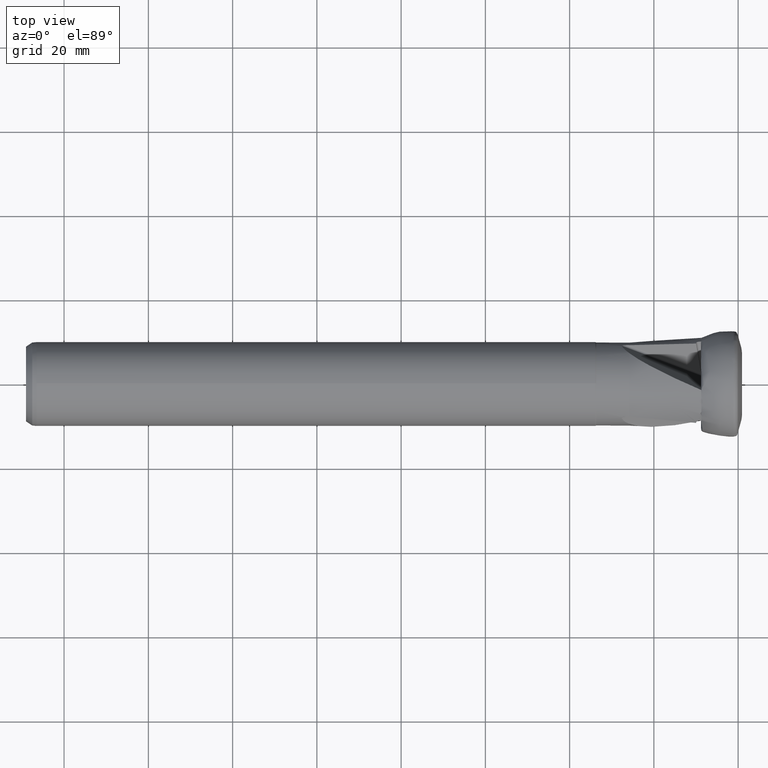
[diagram: clean part render]
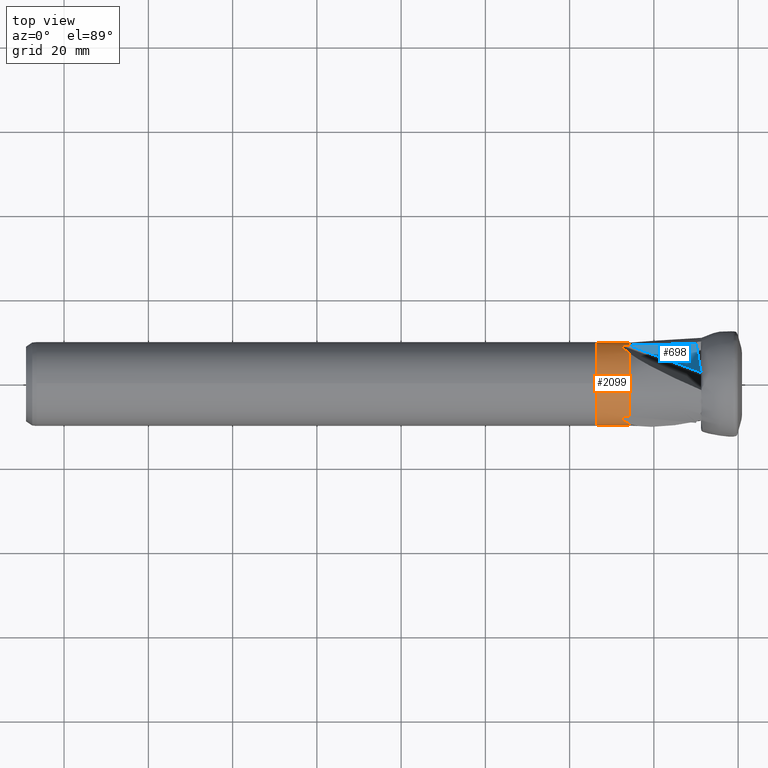
[diagram: same view with the hole feature highlighted: cylindrical wall and planar end face, labeled with their STEP entity ids]
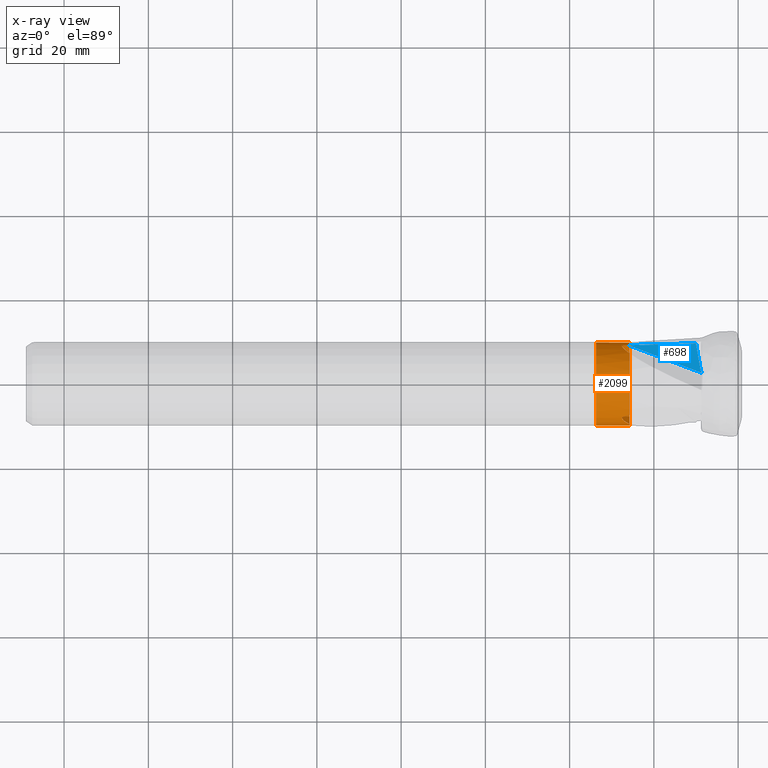
[diagram: x-ray of the same camera — body ghosted, the hole faces saturated]
A machine part, top view. The highlighted faces form one hole feature of diameter 19.8 mm: the cylindrical wall (entity #2099, orange) and its adjacent planar end face (entity #698, blue) — they share a circular edge in the B-rep.
The next image is the same camera in x-ray (body ghosted, the hole faces saturated) — the bore reads through the body.
Wall:
#34 = CARTESIAN_POINT ( 'NONE',  ( -27.61564122826636900, 8.963413834609408300, 4.203238326520708100 ) ) ;
#64 =( BOUNDED_CURVE ( )  B_SPLINE_CURVE ( 3, ( #2452, #2436, #1239, #3362 ),
 .UNSPECIFIED., .F., .T. ) 
 B_SPLINE_CURVE_WITH_KNOTS ( ( 4, 4 ),
 ( 1.702784348002084600, 1.704862663847087200 ),
 .UNSPECIFIED. ) 
 CURVE ( )  GEOMETRIC_REPRESENTATION_ITEM ( )  RATIONAL_B_SPLINE_CURVE ( ( 1.000000000000000000, 0.9999996400503029500, 0.9999996400503029500, 1.000000000000000000 ) ) 
 REPRESENTATION_ITEM ( '' )  );
#74 = CARTESIAN_POINT ( 'NONE',  ( -27.48806169156334900, 9.065543854442115200, 3.978510894549219600 ) ) ;
#142 = VERTEX_POINT ( 'NONE', #2656 ) ;
#159 = CARTESIAN_POINT ( 'NONE',  ( -27.61756287462494400, -0.9148450907827342400, -9.857696703470542900 ) ) ;
#161 = EDGE_LOOP ( 'NONE', ( #2997, #2093, #2735, #1234, #1885, #1019, #482, #1419, #2726, #1057, #1969, #420 ) ) ;
#162 = EDGE_CURVE ( 'NONE', #2925, #3113, #2258, .T. ) ;
#193 = VERTEX_POINT ( 'NONE', #837 ) ;
#250 = CARTESIAN_POINT ( 'NONE',  ( 0.0000000000000000000, 0.0000000000000000000, 0.0000000000000000000 ) ) ;
#287 = CARTESIAN_POINT ( 'NONE',  ( -27.41783301019367900, -8.722487658318975400, 4.799134832800167900 ) ) ;
#291 = CARTESIAN_POINT ( 'NONE',  ( -27.61564122826637700, -0.8415957483774254600, -9.864163248664985100 ) ) ;
#295 = CARTESIAN_POINT ( 'NONE',  ( -26.09164118996199400, 9.158358529980585400, 3.759583625394147300 ) ) ;
#306 = CARTESIAN_POINT ( 'NONE',  ( -27.61564122826638400, -8.121818086232055500, 5.660924922144244100 ) ) ;
#307 = CARTESIAN_POINT ( 'NONE',  ( -27.41783301019367500, 0.2050711477676617800, -9.953463312700556300 ) ) ;
#340 = DIRECTION ( 'NONE',  ( 1.000000000000000000, -0.0000000000000000000, -0.0000000000000000000 ) ) ;
#381 = CARTESIAN_POINT ( 'NONE',  ( -27.22900318429483600, 9.116895860550529900, 3.859536374489353200 ) ) ;
#390 = EDGE_CURVE ( 'NONE', #2407, #193, #1813, .T. ) ;
#413 = CARTESIAN_POINT ( 'NONE',  ( -25.80000000000000100, 0.0000000000000000000, 0.0000000000000000000 ) ) ;
#420 = ORIENTED_EDGE ( 'NONE', *, *, #3121, .F. ) ;
#457 = CARTESIAN_POINT ( 'NONE',  ( -27.56609073157438800, -1.010714957216299400, -9.848305125958194800 ) ) ;
#482 = ORIENTED_EDGE ( 'NONE', *, *, #2866, .F. ) ;
#490 = CARTESIAN_POINT ( 'NONE',  ( -27.61564122826636900, 8.963413834609408300, 4.203238326520708100 ) ) ;
#502 = CARTESIAN_POINT ( 'NONE',  ( -25.80000000000000100, 7.206657879620563800, 6.787789198708425800 ) ) ;
#539 = DIRECTION ( 'NONE',  ( 1.000000000000000000, -0.0000000000000000000, -0.0000000000000000000 ) ) ;
#541 =( BOUNDED_CURVE ( )  B_SPLINE_CURVE ( 3, ( #1169, #287, #1200, #3328 ),
 .UNSPECIFIED., .F., .T. ) 
 B_SPLINE_CURVE_WITH_KNOTS ( ( 4, 4 ),
 ( 3.216684054430979200, 3.533673707329590700 ),
 .UNSPECIFIED. ) 
 CURVE ( )  GEOMETRIC_REPRESENTATION_ITEM ( )  RATIONAL_B_SPLINE_CURVE ( ( 1.000000000000000000, 0.9916439776872796300, 0.9916439776872796300, 1.000000000000000000 ) ) 
 REPRESENTATION_ITEM ( '' )  );
#662 = CARTESIAN_POINT ( 'NONE',  ( -25.80000000000002600, -7.847634354999088100, 6.035282514532322100 ) ) ;
#672 = CARTESIAN_POINT ( 'NONE',  ( -26.66492173286943800, 9.162136691722969000, 3.750756241386878500 ) ) ;
#704 = DIRECTION ( 'NONE',  ( 0.0000000000000000000, 0.0000000000000000000, -1.000000000000000000 ) ) ;
#729 = CARTESIAN_POINT ( 'NONE',  ( -25.79999999999996900, -1.302890799101552400, -9.813891968307563800 ) ) ;
#733 = VERTEX_POINT ( 'NONE', #1863 ) ;
#735 = CARTESIAN_POINT ( 'NONE',  ( -27.58870049124481500, -8.040627467917667900, 5.775762785979978300 ) ) ;
#759 = CARTESIAN_POINT ( 'NONE',  ( -27.42464623291233700, -1.124021528759982000, -9.836032146776277700 ) ) ;
#773 = EDGE_CURVE ( 'NONE', #2407, #2493, #1384, .T. ) ;
#837 = CARTESIAN_POINT ( 'NONE',  ( -25.80000000000000100, 7.206657879620563800, 6.787789198708425800 ) ) ;
#855 = CARTESIAN_POINT ( 'NONE',  ( -25.79999999999996900, 9.150525154102101800, 3.778609453775406900 ) ) ;
#948 = CIRCLE ( 'NONE', #1962, 9.899999999999995000 ) ;
#971 = CARTESIAN_POINT ( 'NONE',  ( -27.61564122826636900, 8.963413834609408300, 4.203238326520708100 ) ) ;
#988 = CARTESIAN_POINT ( 'NONE',  ( -26.09164118996199400, 9.158358529980585400, 3.759583625394147300 ) ) ;
#993 = VERTEX_POINT ( 'NONE', #3381 ) ;
#994 = EDGE_CURVE ( 'NONE', #3113, #2375, #2514, .T. ) ;
#1019 = ORIENTED_EDGE ( 'NONE', *, *, #773, .T. ) ;
#1052 = CARTESIAN_POINT ( 'NONE',  ( -27.48806169156334900, -7.978263431133858500, 5.861735829794122700 ) ) ;
#1057 = ORIENTED_EDGE ( 'NONE', *, *, #3345, .T. ) ;
#1073 = CARTESIAN_POINT ( 'NONE',  ( -27.09016996053350100, -1.252426446707761700, -9.820496844896231500 ) ) ;
#1085 = EDGE_CURVE ( 'NONE', #193, #733, #3853, .T. ) ;
#1132 =( BOUNDED_CURVE ( )  B_SPLINE_CURVE ( 3, ( #662, #2504, #3117, #1294 ),
 .UNSPECIFIED., .F., .T. ) 
 B_SPLINE_CURVE_WITH_KNOTS ( ( 4, 4 ),
 ( 1.702784348002094300, 1.704862663847087200 ),
 .UNSPECIFIED. ) 
 CURVE ( )  GEOMETRIC_REPRESENTATION_ITEM ( )  RATIONAL_B_SPLINE_CURVE ( ( 1.000000000000000000, 0.9999996400503029500, 0.9999996400503029500, 1.000000000000000000 ) ) 
 REPRESENTATION_ITEM ( '' )  );
#1169 = CARTESIAN_POINT ( 'NONE',  ( -27.61564122826638400, -8.121818086232055500, 5.660924922144244100 ) ) ;
#1188 = CARTESIAN_POINT ( 'NONE',  ( -25.89722723078909900, 9.153142869205774800, 3.772270225494856400 ) ) ;
#1200 = CARTESIAN_POINT ( 'NONE',  ( -26.80751947391128800, -9.179610297018717400, 3.853341522340141300 ) ) ;
#1234 = ORIENTED_EDGE ( 'NONE', *, *, #1085, .F. ) ;
#1239 = CARTESIAN_POINT ( 'NONE',  ( -25.99444099576966500, -1.316487438046849200, -9.812079691060011700 ) ) ;
#1288 = CARTESIAN_POINT ( 'NONE',  ( -27.62245709324888700, 8.978781535572281300, 4.170466674590424600 ) ) ;
#1294 = CARTESIAN_POINT ( 'NONE',  ( -26.09164118996199400, -7.835074192233648200, 6.051579331231983400 ) ) ;
#1367 = CARTESIAN_POINT ( 'NONE',  ( -27.22900318429483600, -7.900904477413161200, 5.965695231649240400 ) ) ;
#1373 = VERTEX_POINT ( 'NONE', #2003 ) ;
#1384 = B_SPLINE_CURVE_WITH_KNOTS ( 'NONE', 3,
 ( #971, #1288, #1584, #3700, #1881, #74, #2194, #381, #2511, #672, #2822, #988 ),
 .UNSPECIFIED., .F., .F.,
 ( 4, 2, 2, 2, 2, 4 ),
 ( 8.673617379884035500E-019, 0.0001089116480767898700, 0.0002178232961535788700, 0.0004356465923071480800, 0.0008712931846142874900, 0.001742586369228576500 ),
 .UNSPECIFIED. ) ;
#1385 = CARTESIAN_POINT ( 'NONE',  ( -26.37910798223860800, -1.343385974070539800, -9.808451740776668300 ) ) ;
#1405 = B_SPLINE_CURVE_WITH_KNOTS ( 'NONE', 3,
 ( #1946, #3765, #2578, #735, #2882, #1052, #3188, #1367, #3481, #1659, #3778, #1959 ),
 .UNSPECIFIED., .F., .F.,
 ( 4, 2, 2, 2, 2, 4 ),
 ( 2.453269466693398700E-018, 0.0001089116480767967900, 0.0002178232961535911400, 0.0004356465923071688400, 0.0008712931846143248900, 0.001742586369228647200 ),
 .UNSPECIFIED. ) ;
#1417 = CARTESIAN_POINT ( 'NONE',  ( -27.41783301019366800, 8.517416510551241200, 5.154328479900343000 ) ) ;
#1419 = ORIENTED_EDGE ( 'NONE', *, *, #994, .F. ) ;
#1459 = CARTESIAN_POINT ( 'NONE',  ( -33.70358983848622400, 0.0000000000000000000, 0.0000000000000000000 ) ) ;
#1576 = CARTESIAN_POINT ( 'NONE',  ( -25.80000000000000100, 0.0000000000000000000, 0.0000000000000000000 ) ) ;
#1584 = CARTESIAN_POINT ( 'NONE',  ( -27.61756287462494800, 8.994438313398953600, 4.136569262589986800 ) ) ;
#1590 = EDGE_CURVE ( 'NONE', #1605, #142, #541, .T. ) ;
#1605 = VERTEX_POINT ( 'NONE', #306 ) ;
#1659 = CARTESIAN_POINT ( 'NONE',  ( -26.66492173286943100, -7.829318534305579100, 6.059265007284130500 ) ) ;
#1746 = DIRECTION ( 'NONE',  ( 0.0000000000000000000, 0.0000000000000000000, -1.000000000000000000 ) ) ;
#1805 = EDGE_CURVE ( 'NONE', #1605, #1373, #1405, .T. ) ;
#1813 =( BOUNDED_CURVE ( )  B_SPLINE_CURVE ( 3, ( #490, #1417, #2337, #502 ),
 .UNSPECIFIED., .F., .F. ) 
 B_SPLINE_CURVE_WITH_KNOTS ( ( 4, 4 ),
 ( 3.216684054430979200, 3.533673707329589400 ),
 .UNSPECIFIED. ) 
 CURVE ( )  GEOMETRIC_REPRESENTATION_ITEM ( )  RATIONAL_B_SPLINE_CURVE ( ( 1.000000000000000000, 0.9916439776872798500, 0.9916439776872798500, 1.000000000000000000 ) ) 
 REPRESENTATION_ITEM ( '' )  );
#1860 = CARTESIAN_POINT ( 'NONE',  ( -26.09164118996199400, 9.158358529980585400, 3.759583625394147300 ) ) ;
#1863 = CARTESIAN_POINT ( 'NONE',  ( -25.80000000000002600, -7.847634354999088100, 6.035282514532322100 ) ) ;
#1869 = DIRECTION ( 'NONE',  ( 0.0000000000000000000, 0.0000000000000000000, -1.000000000000000000 ) ) ;
#1881 = CARTESIAN_POINT ( 'NONE',  ( -27.56609073157439800, 9.034239901908435400, 4.048847734044920300 ) ) ;
#1885 = ORIENTED_EDGE ( 'NONE', *, *, #390, .F. ) ;
#1946 = CARTESIAN_POINT ( 'NONE',  ( -27.61564122826638400, -8.121818086232055500, 5.660924922144244100 ) ) ;
#1959 = CARTESIAN_POINT ( 'NONE',  ( -26.09164118996199400, -7.835074192233648200, 6.051579331231983400 ) ) ;
#1962 = AXIS2_PLACEMENT_3D ( 'NONE', #1459, #3578, #1746 ) ;
#1969 = ORIENTED_EDGE ( 'NONE', *, *, #2338, .F. ) ;
#2003 = CARTESIAN_POINT ( 'NONE',  ( -26.09164118996199400, -7.835074192233648200, 6.051579331231983400 ) ) ;
#2030 = EDGE_CURVE ( 'NONE', #993, #993, #948, .T. ) ;
#2054 = CARTESIAN_POINT ( 'NONE',  ( -25.80000000000000400, 2.275068941804797400, -9.635043399488926900 ) ) ;
#2093 = ORIENTED_EDGE ( 'NONE', *, *, #1805, .T. ) ;
#2099 = ADVANCED_FACE ( 'NONE', ( #2488, #2576 ), #3193, .T. ) ;
#2105 = CARTESIAN_POINT ( 'NONE',  ( -25.99444099576901100, 9.155753995438727700, 3.765928280418427800 ) ) ;
#2112 = CIRCLE ( 'NONE', #2965, 9.899999999999996800 ) ;
#2148 = CARTESIAN_POINT ( 'NONE',  ( -25.80000000000000100, 0.0000000000000000000, 0.0000000000000000000 ) ) ;
#2194 = CARTESIAN_POINT ( 'NONE',  ( -27.42464623291235900, 9.080264475928622400, 3.944584875081421400 ) ) ;
#2236 = AXIS2_PLACEMENT_3D ( 'NONE', #1576, #3692, #1869 ) ;
#2258 =( BOUNDED_CURVE ( )  B_SPLINE_CURVE ( 3, ( #291, #307, #2431, #2054 ),
 .UNSPECIFIED., .F., .F. ) 
 B_SPLINE_CURVE_WITH_KNOTS ( ( 4, 4 ),
 ( 3.216684054430979200, 3.533673707329590300 ),
 .UNSPECIFIED. ) 
 CURVE ( )  GEOMETRIC_REPRESENTATION_ITEM ( )  RATIONAL_B_SPLINE_CURVE ( ( 1.000000000000000000, 0.9916439776872796300, 0.9916439776872796300, 1.000000000000000000 ) ) 
 REPRESENTATION_ITEM ( '' )  );
#2288 = CARTESIAN_POINT ( 'NONE',  ( -27.58870049124481800, -0.9816435649327012200, -9.851269042573626700 ) ) ;
#2337 = CARTESIAN_POINT ( 'NONE',  ( -26.80751947391127700, 7.926896796313355000, 6.023104952889310600 ) ) ;
#2338 = EDGE_CURVE ( 'NONE', #3666, #3686, #64, .T. ) ;
#2375 = VERTEX_POINT ( 'NONE', #3057 ) ;
#2407 = VERTEX_POINT ( 'NONE', #34 ) ;
#2431 = CARTESIAN_POINT ( 'NONE',  ( -26.80751947391128100, 1.252713500705300500, -9.876446475229506900 ) ) ;
#2436 = CARTESIAN_POINT ( 'NONE',  ( -25.89722723079042100, -1.309689589384826400, -9.812989361947991500 ) ) ;
#2449 = CARTESIAN_POINT ( 'NONE',  ( -27.61564122826637700, -0.8415957483774254600, -9.864163248664985100 ) ) ;
#2452 = CARTESIAN_POINT ( 'NONE',  ( -25.79999999999996900, -1.302890799101552400, -9.813891968307563800 ) ) ;
#2471 = DIRECTION ( 'NONE',  ( 0.0000000000000000000, 0.0000000000000000000, -1.000000000000000000 ) ) ;
#2488 = FACE_OUTER_BOUND ( 'NONE', #161, .T. ) ;
#2493 = VERTEX_POINT ( 'NONE', #1860 ) ;
#2504 = CARTESIAN_POINT ( 'NONE',  ( -25.89722723079134400, -7.843453279821013700, 6.040719136453245300 ) ) ;
#2511 = CARTESIAN_POINT ( 'NONE',  ( -27.09016996053351200, 9.131012968818925700, 3.825615303227757600 ) ) ;
#2514 = CIRCLE ( 'NONE', #3454, 9.899999999999996800 ) ;
#2530 =( BOUNDED_CURVE ( )  B_SPLINE_CURVE ( 3, ( #855, #1188, #2105, #295 ),
 .UNSPECIFIED., .F., .T. ) 
 B_SPLINE_CURVE_WITH_KNOTS ( ( 4, 4 ),
 ( 1.702784348002070300, 1.704862663847087200 ),
 .UNSPECIFIED. ) 
 CURVE ( )  GEOMETRIC_REPRESENTATION_ITEM ( )  RATIONAL_B_SPLINE_CURVE ( ( 1.000000000000000000, 0.9999996400503029500, 0.9999996400503029500, 1.000000000000000000 ) ) 
 REPRESENTATION_ITEM ( '' )  );
#2545 = DIRECTION ( 'NONE',  ( 1.000000000000000000, -0.0000000000000000000, -0.0000000000000000000 ) ) ;
#2576 = FACE_OUTER_BOUND ( 'NONE', #3819, .T. ) ;
#2578 = CARTESIAN_POINT ( 'NONE',  ( -27.61756287462494800, -8.079593222616290800, 5.721127440880526800 ) ) ;
#2582 = CARTESIAN_POINT ( 'NONE',  ( -27.61564122826637700, -0.8415957483774254600, -9.864163248664985100 ) ) ;
#2593 = CARTESIAN_POINT ( 'NONE',  ( -27.48806169156333800, -1.087280423308328000, -9.840246724343369800 ) ) ;
#2595 = CARTESIAN_POINT ( 'NONE',  ( -26.09164118996198700, -1.323284337747007200, -9.811162956626160900 ) ) ;
#2656 = CARTESIAN_POINT ( 'NONE',  ( -25.79999999999999700, -9.481726821425414900, 2.847254200780436700 ) ) ;
#2681 = DIRECTION ( 'NONE',  ( 0.0000000000000000000, 0.0000000000000000000, -1.000000000000000000 ) ) ;
#2705 = AXIS2_PLACEMENT_3D ( 'NONE', #250, #539, #2681 ) ;
#2726 = ORIENTED_EDGE ( 'NONE', *, *, #162, .F. ) ;
#2735 = ORIENTED_EDGE ( 'NONE', *, *, #3041, .F. ) ;
#2810 = B_SPLINE_CURVE_WITH_KNOTS ( 'NONE', 3,
 ( #2582, #3783, #159, #2288, #457, #2593, #759, #2902, #1073, #3205, #1385, #3497 ),
 .UNSPECIFIED., .F., .F.,
 ( 4, 2, 2, 2, 2, 4 ),
 ( 1.192622389734054900E-018, 0.0001089116480767858300, 0.0002178232961535704600, 0.0004356465923071472100, 0.0008712931846143007200, 0.001742586369228597300 ),
 .UNSPECIFIED. ) ;
#2822 = CARTESIAN_POINT ( 'NONE',  ( -26.37910798223861500, 9.166061366341546400, 3.740819489755585500 ) ) ;
#2866 = EDGE_CURVE ( 'NONE', #2375, #2493, #2530, .T. ) ;
#2882 = CARTESIAN_POINT ( 'NONE',  ( -27.56609073157440200, -8.023524944692205500, 5.799457391913241700 ) ) ;
#2902 = CARTESIAN_POINT ( 'NONE',  ( -27.22900318429483600, -1.215991383137444300, -9.825231606138622500 ) ) ;
#2925 = VERTEX_POINT ( 'NONE', #2449 ) ;
#2965 = AXIS2_PLACEMENT_3D ( 'NONE', #413, #2545, #704 ) ;
#2997 = ORIENTED_EDGE ( 'NONE', *, *, #1590, .F. ) ;
#3041 = EDGE_CURVE ( 'NONE', #733, #1373, #1132, .T. ) ;
#3057 = CARTESIAN_POINT ( 'NONE',  ( -25.79999999999996900, 9.150525154102101800, 3.778609453775406900 ) ) ;
#3070 = ORIENTED_EDGE ( 'NONE', *, *, #2030, .T. ) ;
#3113 = VERTEX_POINT ( 'NONE', #3735 ) ;
#3117 = CARTESIAN_POINT ( 'NONE',  ( -25.99444099577013000, -7.839266557391946200, 6.046151410641622100 ) ) ;
#3121 = EDGE_CURVE ( 'NONE', #142, #3666, #2112, .T. ) ;
#3188 = CARTESIAN_POINT ( 'NONE',  ( -27.42464623291234100, -7.956242947168708400, 5.891447271694834100 ) ) ;
#3193 = CYLINDRICAL_SURFACE ( 'NONE', #2705, 9.899999999999995000 ) ;
#3205 = CARTESIAN_POINT ( 'NONE',  ( -26.66492173286942700, -1.332818157417459600, -9.810021248671034800 ) ) ;
#3328 = CARTESIAN_POINT ( 'NONE',  ( -25.79999999999999700, -9.481726821425414900, 2.847254200780436700 ) ) ;
#3345 = EDGE_CURVE ( 'NONE', #2925, #3686, #2810, .T. ) ;
#3362 = CARTESIAN_POINT ( 'NONE',  ( -26.09164118996198700, -1.323284337747007200, -9.811162956626160900 ) ) ;
#3381 = CARTESIAN_POINT ( 'NONE',  ( -33.70358983848622400, 0.0000000000000000000, -9.899999999999995000 ) ) ;
#3454 = AXIS2_PLACEMENT_3D ( 'NONE', #2148, #340, #2471 ) ;
#3481 = CARTESIAN_POINT ( 'NONE',  ( -27.09016996053349400, -7.878586522111236300, 5.994881541668441100 ) ) ;
#3497 = CARTESIAN_POINT ( 'NONE',  ( -26.09164118996198700, -1.323284337747007200, -9.811162956626160900 ) ) ;
#3578 = DIRECTION ( 'NONE',  ( 1.000000000000000000, -0.0000000000000000000, -0.0000000000000000000 ) ) ;
#3666 = VERTEX_POINT ( 'NONE', #729 ) ;
#3686 = VERTEX_POINT ( 'NONE', #2595 ) ;
#3692 = DIRECTION ( 'NONE',  ( 1.000000000000000000, -0.0000000000000000000, -0.0000000000000000000 ) ) ;
#3700 = CARTESIAN_POINT ( 'NONE',  ( -27.58870049124482500, 9.022271032850293100, 4.075506256593617300 ) ) ;
#3735 = CARTESIAN_POINT ( 'NONE',  ( -25.80000000000000400, 2.275068941804797400, -9.635043399488926900 ) ) ;
#3765 = CARTESIAN_POINT ( 'NONE',  ( -27.62245709324889000, -8.101120853617883800, 5.690619567540999800 ) ) ;
#3778 = CARTESIAN_POINT ( 'NONE',  ( -26.37910798223861500, -7.822675392271079900, 6.067632251021049000 ) ) ;
#3783 = CARTESIAN_POINT ( 'NONE',  ( -27.62245709324887600, -0.8776606819544710000, -9.861086242131449400 ) ) ;
#3819 = EDGE_LOOP ( 'NONE', ( #3070 ) ) ;
#3853 = CIRCLE ( 'NONE', #2236, 9.899999999999996800 ) ;
End face:
#186 = ORIENTED_EDGE ( 'NONE', *, *, #2866, .T. ) ;
#229 = VECTOR ( 'NONE', #1216, 1000.000000000000000 ) ;
#295 = CARTESIAN_POINT ( 'NONE',  ( -26.09164118996199400, 9.158358529980585400, 3.759583625394147300 ) ) ;
#299 = EDGE_CURVE ( 'NONE', #2473, #2658, #2355, .T. ) ;
#642 =( BOUNDED_CURVE ( )  B_SPLINE_CURVE ( 3, ( #1022, #2853, #3743, #1930 ),
 .UNSPECIFIED., .F., .T. ) 
 B_SPLINE_CURVE_WITH_KNOTS ( ( 4, 4 ),
 ( 2.685700531748276700, 2.733482246654150000 ),
 .UNSPECIFIED. ) 
 CURVE ( )  GEOMETRIC_REPRESENTATION_ITEM ( )  RATIONAL_B_SPLINE_CURVE ( ( 1.000000000000000000, 0.9998097513593793300, 0.9998097513593793300, 1.000000000000000000 ) ) 
 REPRESENTATION_ITEM ( '' )  );
#682 = DIRECTION ( 'NONE',  ( 0.1496681375759299800, -0.8614556805445732200, -0.4852767860222028700 ) ) ;
#698 = ADVANCED_FACE ( 'NONE', ( #1224 ), #2776, .F. ) ;
#753 = DIRECTION ( 'NONE',  ( -0.06975647374411163300, -0.4987820251299229200, 0.8639158094270993300 ) ) ;
#793 = AXIS2_PLACEMENT_3D ( 'NONE', #2591, #753, #2896 ) ;
#830 = VERTEX_POINT ( 'NONE', #1922 ) ;
#855 = CARTESIAN_POINT ( 'NONE',  ( -25.79999999999996900, 9.150525154102101800, 3.778609453775406900 ) ) ;
#945 = CARTESIAN_POINT ( 'NONE',  ( -4.373651380612092700, 9.766636997305584000, 5.864382185443568900 ) ) ;
#1022 = CARTESIAN_POINT ( 'NONE',  ( -9.991745607475410300, 9.526964562060205900, 5.272376877210112100 ) ) ;
#1188 = CARTESIAN_POINT ( 'NONE',  ( -25.89722723078909900, 9.153142869205774800, 3.772270225494856400 ) ) ;
#1216 = DIRECTION ( 'NONE',  ( 0.9289711258367763200, -0.3480661720179835100, -0.1259467635880329500 ) ) ;
#1224 = FACE_OUTER_BOUND ( 'NONE', #1699, .T. ) ;
#1481 = AXIS2_PLACEMENT_3D ( 'NONE', #945, #3386, #1560 ) ;
#1560 = DIRECTION ( 'NONE',  ( 0.9975640502598252000, -0.03487823687205610100, 0.06041087834082271800 ) ) ;
#1606 = EDGE_CURVE ( 'NONE', #2493, #2658, #2019, .T. ) ;
#1699 = EDGE_LOOP ( 'NONE', ( #2025, #3633, #2831, #1878, #186 ) ) ;
#1804 = VECTOR ( 'NONE', #682, 1000.000000000000000 ) ;
#1860 = CARTESIAN_POINT ( 'NONE',  ( -26.09164118996199400, 9.158358529980585400, 3.759583625394147300 ) ) ;
#1878 = ORIENTED_EDGE ( 'NONE', *, *, #3200, .T. ) ;
#1894 = CARTESIAN_POINT ( 'NONE',  ( -8.920380937495687900, 3.360433757061249700, 1.798635490926497000 ) ) ;
#1922 = CARTESIAN_POINT ( 'NONE',  ( -9.991745607475410300, 9.526964562060205900, 5.272376877210112100 ) ) ;
#1930 = CARTESIAN_POINT ( 'NONE',  ( -25.79999999999996900, 9.150525154102101800, 3.778609453775406900 ) ) ;
#2019 = LINE ( 'NONE', #2102, #229 ) ;
#2025 = ORIENTED_EDGE ( 'NONE', *, *, #1606, .T. ) ;
#2102 = CARTESIAN_POINT ( 'NONE',  ( -7.792236842026495600, 2.301952077241953300, 1.278612269976365800 ) ) ;
#2105 = CARTESIAN_POINT ( 'NONE',  ( -25.99444099576901100, 9.155753995438727700, 3.765928280418427800 ) ) ;
#2355 = CIRCLE ( 'NONE', #793, 1.999999999999999100 ) ;
#2375 = VERTEX_POINT ( 'NONE', #3057 ) ;
#2473 = VERTEX_POINT ( 'NONE', #3094 ) ;
#2493 = VERTEX_POINT ( 'NONE', #1860 ) ;
#2530 =( BOUNDED_CURVE ( )  B_SPLINE_CURVE ( 3, ( #855, #1188, #2105, #295 ),
 .UNSPECIFIED., .F., .T. ) 
 B_SPLINE_CURVE_WITH_KNOTS ( ( 4, 4 ),
 ( 1.702784348002070300, 1.704862663847087200 ),
 .UNSPECIFIED. ) 
 CURVE ( )  GEOMETRIC_REPRESENTATION_ITEM ( )  RATIONAL_B_SPLINE_CURVE ( ( 1.000000000000000000, 0.9999996400503029500, 0.9999996400503029500, 1.000000000000000000 ) ) 
 REPRESENTATION_ITEM ( '' )  );
#2581 = EDGE_CURVE ( 'Kante63', #830, #2473, #3428, .T. ) ;
#2591 = CARTESIAN_POINT ( 'NONE',  ( -6.947835898247824100, 3.551332702734391900, 2.068123265564836300 ) ) ;
#2658 = VERTEX_POINT ( 'NONE', #3444 ) ;
#2776 = PLANE ( 'NONE',  #1481 ) ;
#2831 = ORIENTED_EDGE ( 'NONE', *, *, #2581, .F. ) ;
#2853 = CARTESIAN_POINT ( 'NONE',  ( -15.53374370237106200, 9.414456332647983300, 4.759934203658281700 ) ) ;
#2866 = EDGE_CURVE ( 'NONE', #2375, #2493, #2530, .T. ) ;
#2896 = DIRECTION ( 'NONE',  ( 0.9975640502598252000, -0.03487823687205617700, 0.06041087834082273200 ) ) ;
#3057 = CARTESIAN_POINT ( 'NONE',  ( -25.79999999999996900, 9.150525154102101800, 3.778609453775406900 ) ) ;
#3094 = CARTESIAN_POINT ( 'NONE',  ( -8.920380937495687900, 3.360433757061249700, 1.798635490926497000 ) ) ;
#3200 = EDGE_CURVE ( 'NONE', #830, #2375, #642, .T. ) ;
#3386 = DIRECTION ( 'NONE',  ( 0.06975647374411164700, 0.4987820251299228700, -0.8639158094270992200 ) ) ;
#3428 = LINE ( 'NONE', #1894, #1804 ) ;
#3444 = CARTESIAN_POINT ( 'NONE',  ( -8.562683782731232500, 2.590622532044852400, 1.383066860651245500 ) ) ;
#3633 = ORIENTED_EDGE ( 'NONE', *, *, #299, .F. ) ;
#3743 = CARTESIAN_POINT ( 'NONE',  ( -20.80416452361261300, 9.288952653091001800, 4.261916982080455400 ) ) ;